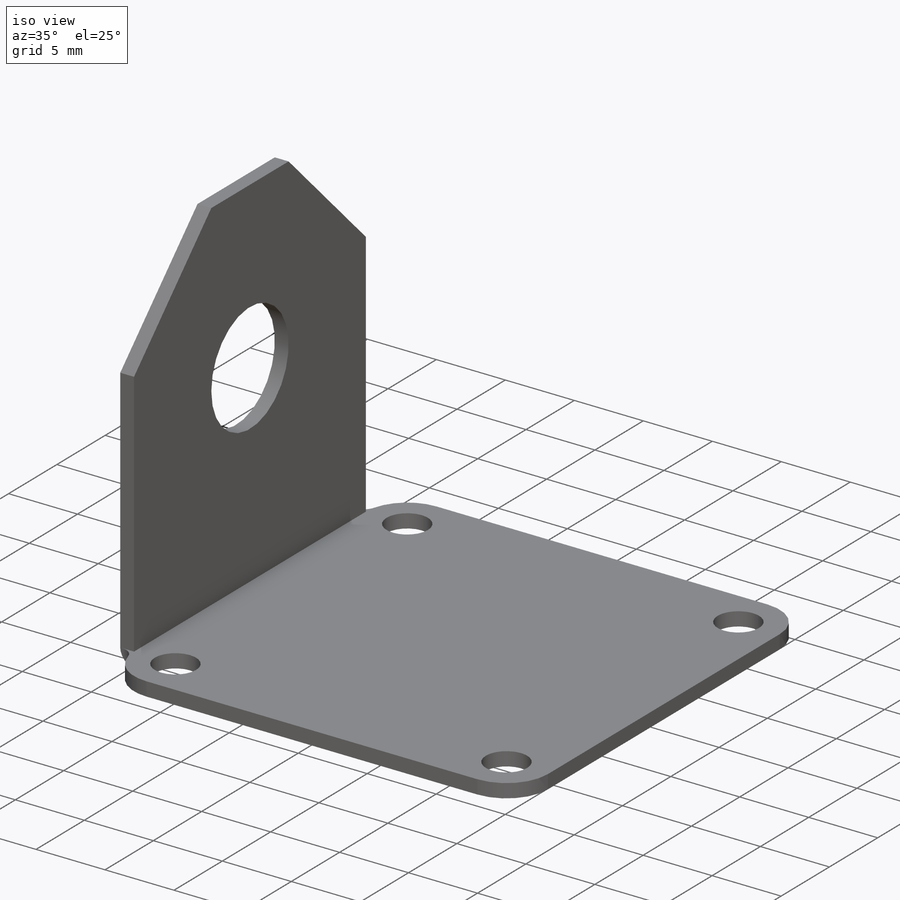
[diagram: iso view]
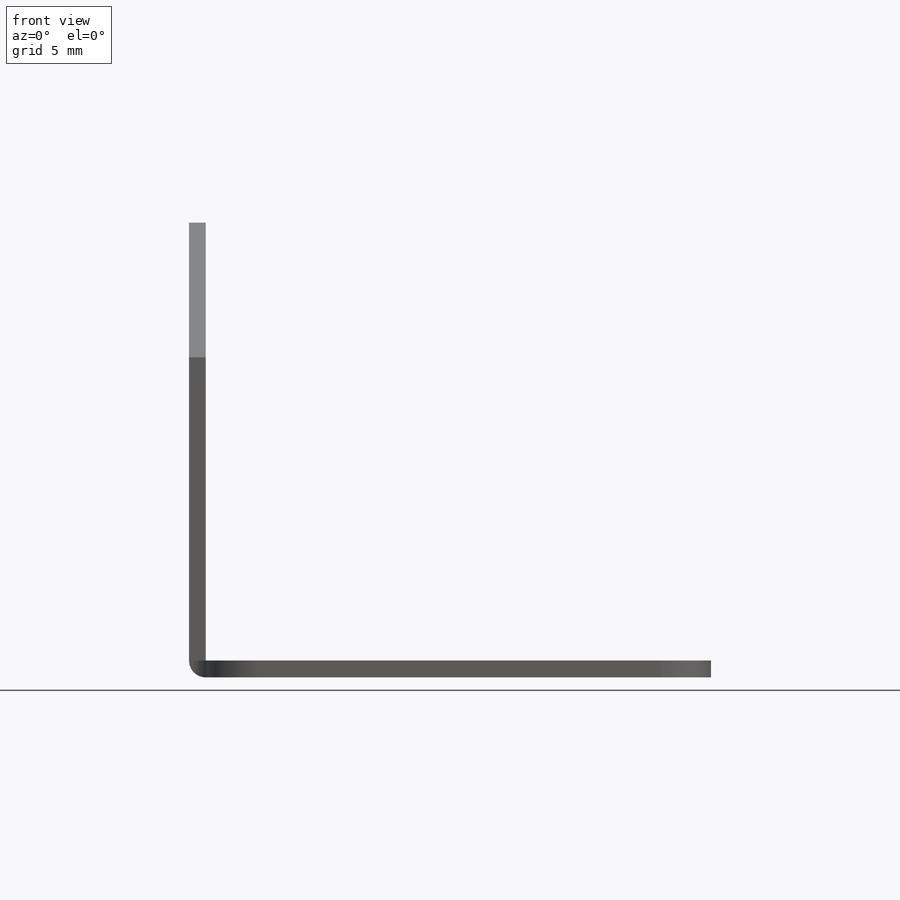
[diagram: front view]
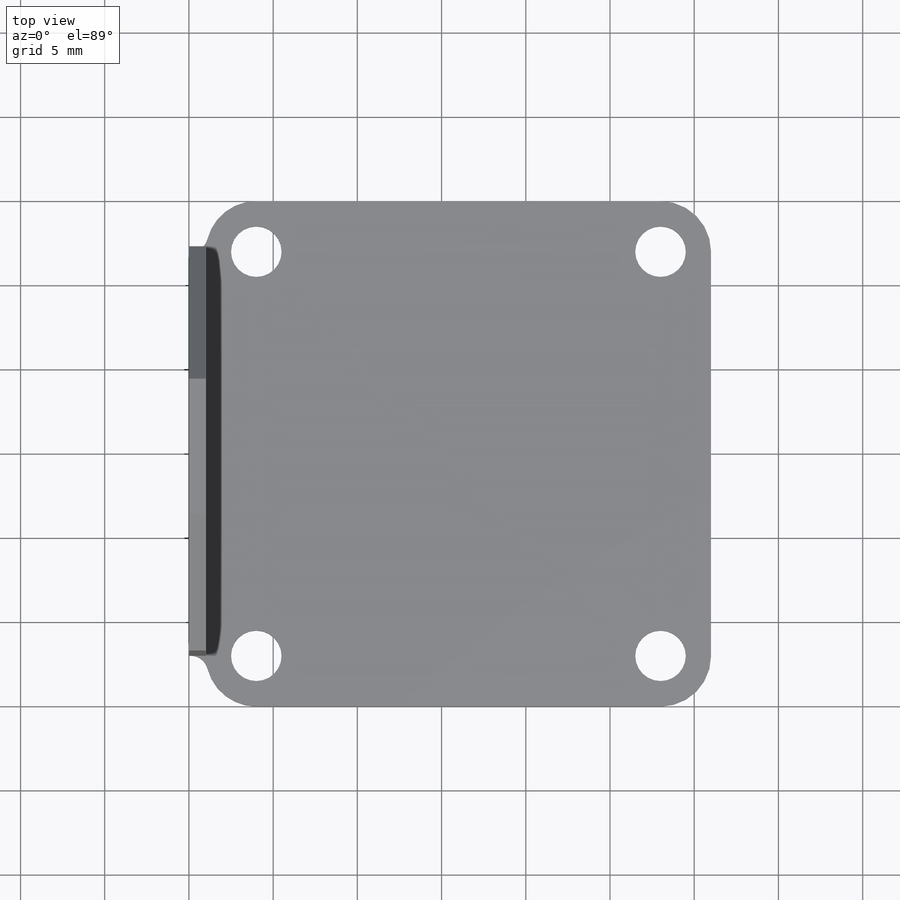
[diagram: top view]
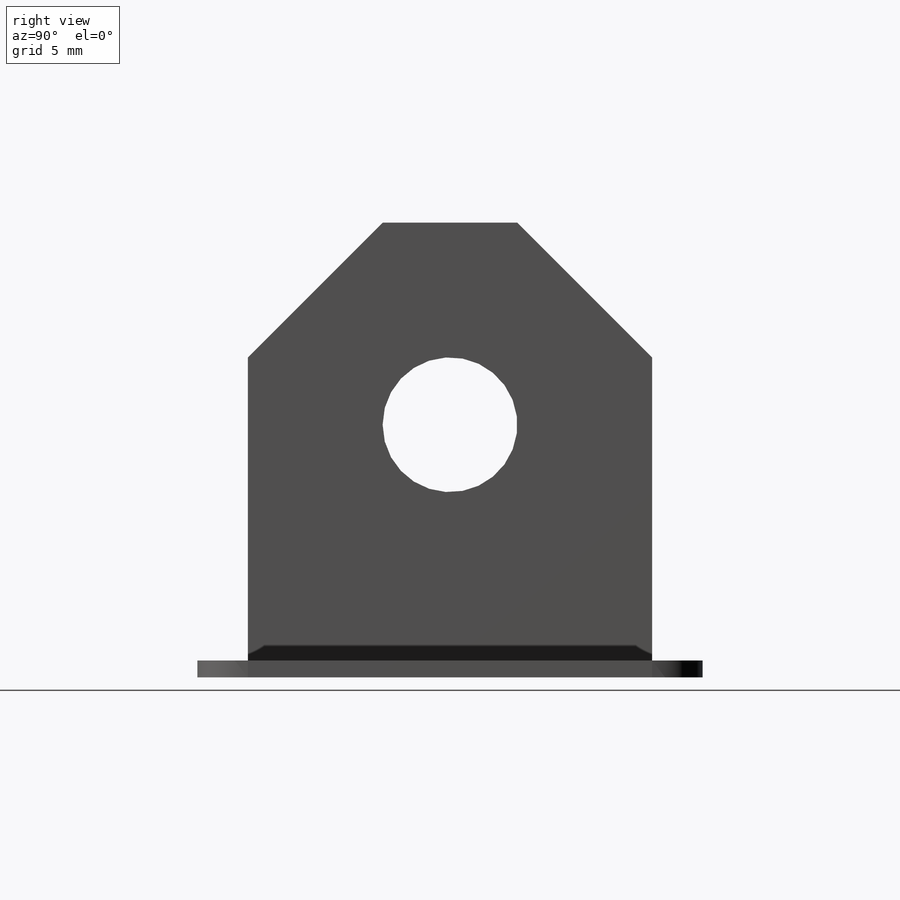
[diagram: right view]
SOLIDWORKS PART (.sldprt)
format: sldprt  version: not decoded by parser v0  size: 242,176 bytes
history: native  units: mm
features: sketch x5, plane x3, cut_extrude x3, fillet x3, extrude x2, material x1, mirror x1 (+9 scaffold rows collapsed)
feature tree (27):
  scaffold x9  (default folders/planes/origin — collapsed)
  material  "Matériau <non spécifié>"
  plane  "Plan de face"
  plane  "Plan de dessus"
  plane  "Plan de droite"
  sketch  "Esquisse1"  dims[D1=24.0mm D2=12.0mm D3=27.0mm D4=13.5mm]
  extrude  "Boss.-Extru.1"  Depth=1mm
  sketch  "Esquisse2"  dims[D1=0.0mm D2=1.0mm D3=30.0mm D4=15.0mm]
  extrude  "Boss.-Extru.2"  Depth=30mm
  sketch  "Esquisse3"  dims[c1.D1=3.0mm c1.D2=3.0mm c1.D3=3.0mm c1.D4=3.0mm c1.D5=24.0mm c1.D6=24.0mm c1.D7=12.0mm c1.D8=12.0mm c1.D9=24.0mm c1.D10=24.0mm c1.D11=3.0mm c1.D12=3.0mm c1.D13=~3.232344mm c2.D13=90.0deg c3.D13=4.0mm c3.D11=3.0mm c3.D12=3.0mm]
  cut_extrude  "Enlèv. mat.-Extru.1"  Depth=31mm
  fillet  "Congé2"  Radius=3mm
  fillet  "Congé3"  Radius=1mm
  fillet  "Congé4"  Radius=1mm
  sketch  "Esquisse4"  dims[D1=8.0mm D2=8.0mm]
  cut_extrude  "Enlèv. mat.-Extru.2"  Depth=31mm
  mirror  "Symétrie1"
  sketch  "Esquisse5"  dims[c1.D3=8.0mm c1.D1=12.0mm c1.D2=~12.630049mm c2.D2=90.0deg c3.D2=12.0mm]
  cut_extrude  "Enlèv. mat.-Extru.3"  Depth=31mm
decode coverage: 13 of 14 modeling features carry decoded parameters
note: ~ marks probable driven/reference dimensions
note: suppression state not decoded; provenance and decode notes live in map.json
